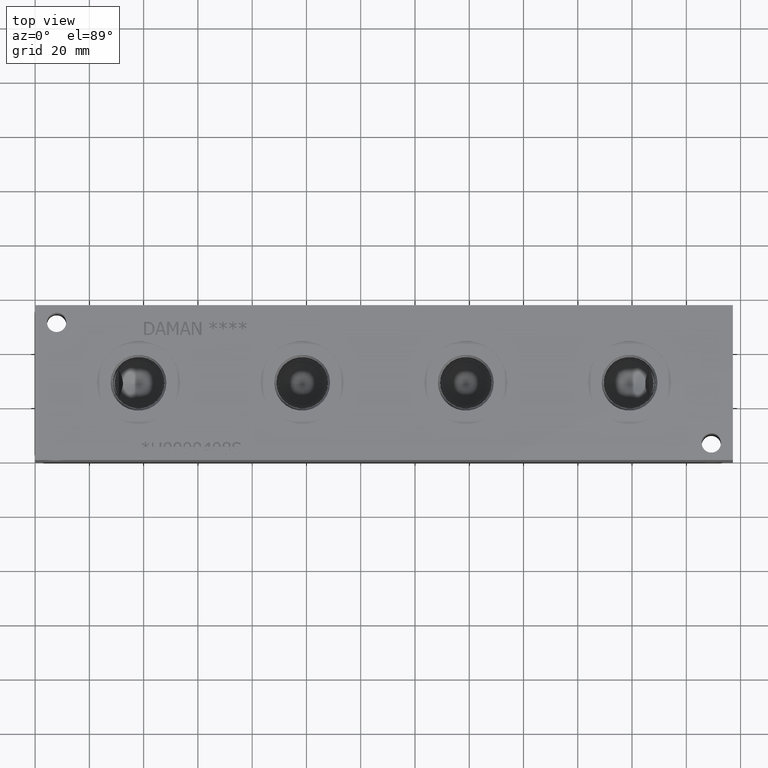
[diagram: clean part render]
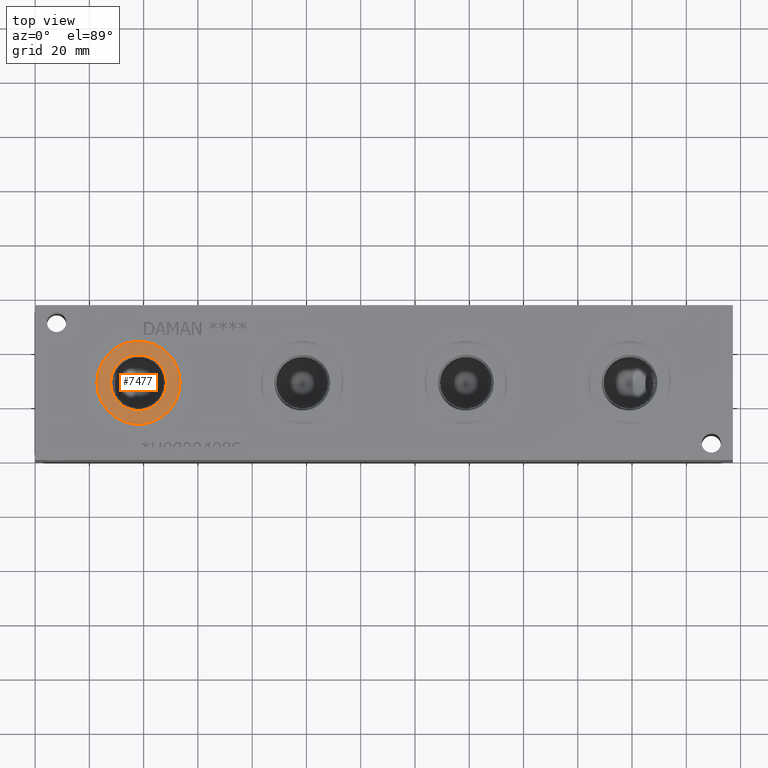
[diagram: same view with one face highlighted and labeled with its STEP entity id]
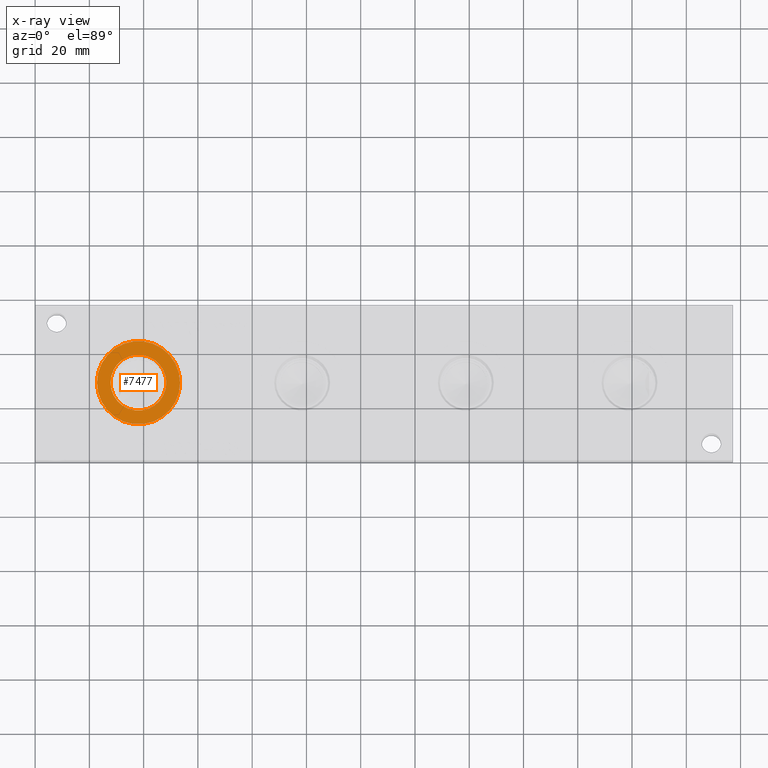
[diagram: x-ray of the same camera — body ghosted, the highlighted face saturated]
A machine part, top view. The second image highlights one B-rep face of the part: STEP entity #7477.
The next image is the same camera in x-ray: the body ghosted, the highlighted face saturated — about 0% of this face is hidden behind the body in this view.
In plain terms, the highlighted planar face has unit normal (0, 0, -1).
Its self-contained STEP definition (entity closure, byte-faithful):
#193=CIRCLE('',#7891,15.3162);
#194=CIRCLE('',#7892,15.3162);
#195=CIRCLE('',#7894,10.2997);
#196=CIRCLE('',#7895,10.2997);
#248=FACE_BOUND('',#1280,.T.);
#471=PLANE('',#7893);
#850=FACE_OUTER_BOUND('',#1279,.T.);
#1279=EDGE_LOOP('',(#6650,#6651));
#1280=EDGE_LOOP('',(#6652,#6653));
#3583=VERTEX_POINT('',#12891);
#3584=VERTEX_POINT('',#12893);
#3585=VERTEX_POINT('',#12897);
#3586=VERTEX_POINT('',#12898);
#4613=EDGE_CURVE('',#3583,#3584,#193,.T.);
#4614=EDGE_CURVE('',#3584,#3583,#194,.T.);
#4615=EDGE_CURVE('',#3585,#3586,#195,.T.);
#4616=EDGE_CURVE('',#3586,#3585,#196,.T.);
#6650=ORIENTED_EDGE('',*,*,#4614,.F.);
#6651=ORIENTED_EDGE('',*,*,#4613,.F.);
#6652=ORIENTED_EDGE('',*,*,#4615,.T.);
#6653=ORIENTED_EDGE('',*,*,#4616,.T.);
#7477=ADVANCED_FACE('',(#850,#248),#471,.F.);
#7891=AXIS2_PLACEMENT_3D('',#12894,#9372,#9373);
#7892=AXIS2_PLACEMENT_3D('',#12895,#9374,#9375);
#7893=AXIS2_PLACEMENT_3D('',#12896,#9376,#9377);
#7894=AXIS2_PLACEMENT_3D('',#12899,#9378,#9379);
#7895=AXIS2_PLACEMENT_3D('',#12900,#9380,#9381);
#9372=DIRECTION('center_axis',(0.,0.,-1.));
#9373=DIRECTION('ref_axis',(1.,0.,0.));
#9374=DIRECTION('center_axis',(0.,0.,-1.));
#9375=DIRECTION('ref_axis',(1.,0.,0.));
#9376=DIRECTION('center_axis',(0.,0.,-1.));
#9377=DIRECTION('ref_axis',(-1.,0.,0.));
#9378=DIRECTION('center_axis',(0.,0.,-1.));
#9379=DIRECTION('ref_axis',(1.,0.,0.));
#9380=DIRECTION('center_axis',(0.,0.,-1.));
#9381=DIRECTION('ref_axis',(1.,0.,0.));
#12891=CARTESIAN_POINT('',(22.7838,28.575,56.3626));
#12893=CARTESIAN_POINT('',(53.4162,28.575,56.3626));
#12894=CARTESIAN_POINT('Origin',(38.1,28.575,56.3626));
#12895=CARTESIAN_POINT('Origin',(38.1,28.575,56.3626));
#12896=CARTESIAN_POINT('Origin',(48.3997,28.575,56.3626));
#12897=CARTESIAN_POINT('',(48.3997,28.575,56.3626));
#12898=CARTESIAN_POINT('',(27.8003,28.575,56.3626));
#12899=CARTESIAN_POINT('Origin',(38.1,28.575,56.3626));
#12900=CARTESIAN_POINT('Origin',(38.1,28.575,56.3626));